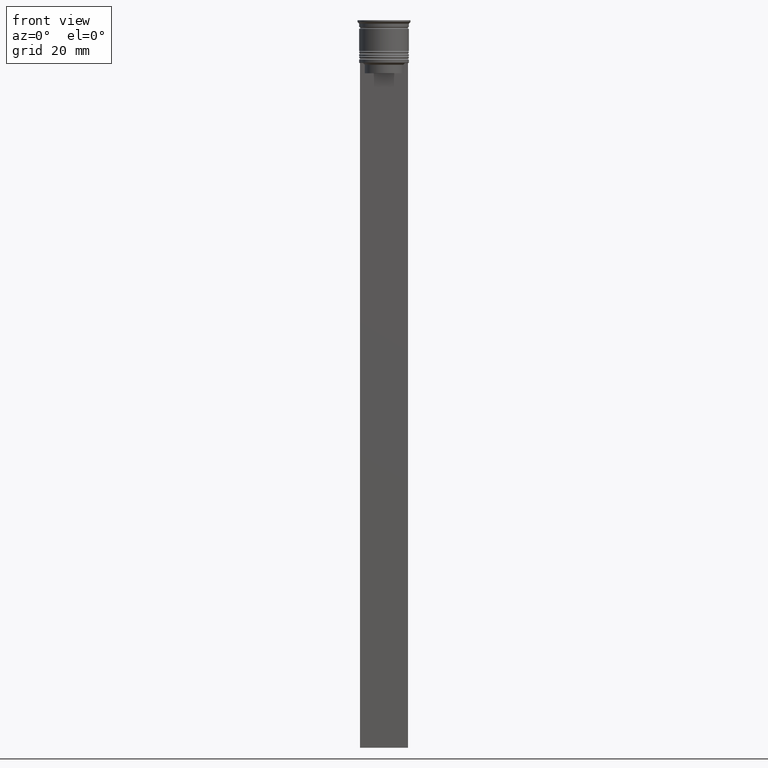
[diagram: clean part render]
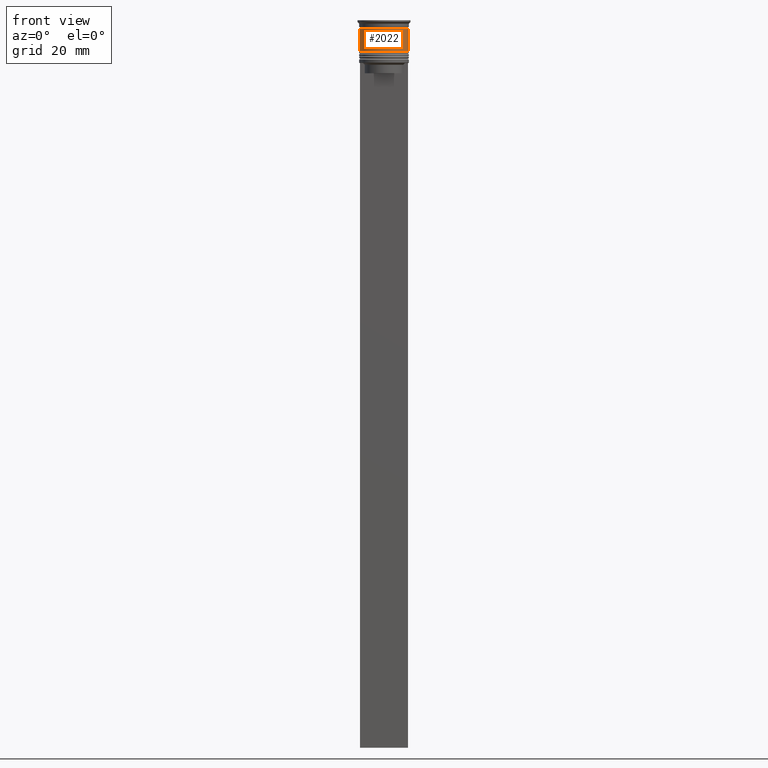
[diagram: same view with one face highlighted and labeled with its STEP entity id]
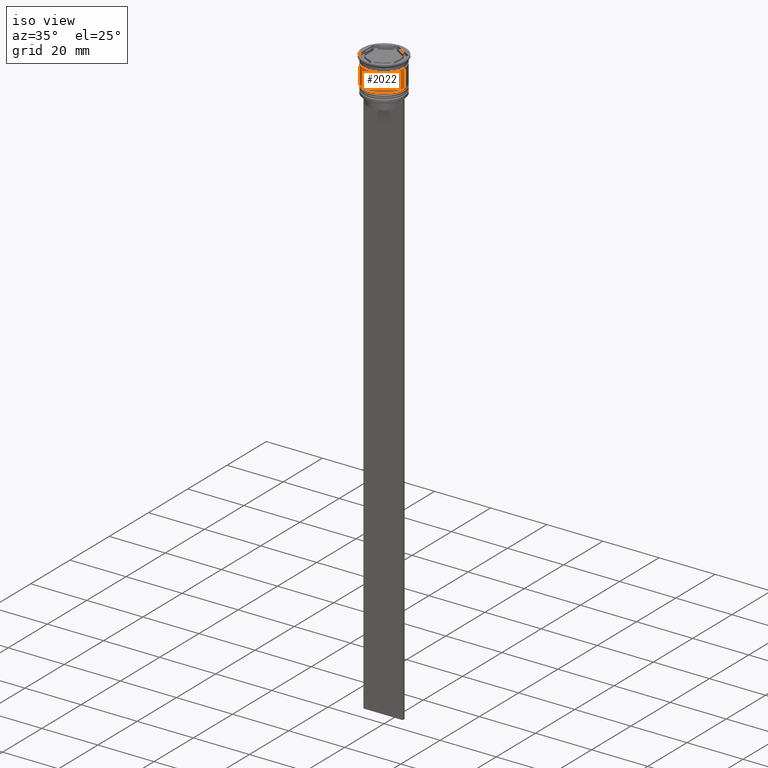
[diagram: same view with one face highlighted and labeled with its STEP entity id]
A machine part, front view. The second image highlights one B-rep face of the part: STEP entity #2022.
A second angle (iso view) of the same face is appended — the face is thin or edge-on in the first view.
In plain terms, the highlighted cylindrical surface (edge-blend (fillet) strip) has radius 7.25 mm, axis along (-0, -0, 1).
Its self-contained STEP definition (entity closure, byte-faithful):
#44 = VECTOR ( 'NONE', #480, 1000.000000000000000 ) ;
#51 = DIRECTION ( 'NONE',  ( -0.000000000000000000, -0.000000000000000000, 1.000000000000000000 ) ) ;
#89 = CARTESIAN_POINT ( 'NONE',  ( -7.250000000000000888, 8.878689293818312046E-16, -9.000000000000001776 ) ) ;
#130 = ORIENTED_EDGE ( 'NONE', *, *, #918, .F. ) ;
#224 = CARTESIAN_POINT ( 'NONE',  ( 0.000000000000000000, 0.000000000000000000, -9.000000000000001776 ) ) ;
#293 = FACE_OUTER_BOUND ( 'NONE', #1896, .T. ) ;
#361 = VERTEX_POINT ( 'NONE', #89 ) ;
#413 = ORIENTED_EDGE ( 'NONE', *, *, #1080, .F. ) ;
#453 = CARTESIAN_POINT ( 'NONE',  ( 0.000000000000000000, 0.000000000000000000, -2.500000000000000444 ) ) ;
#480 = DIRECTION ( 'NONE',  ( -0.000000000000000000, -0.000000000000000000, 1.000000000000000000 ) ) ;
#689 = LINE ( 'NONE', #1375, #44 ) ;
#805 = ORIENTED_EDGE ( 'NONE', *, *, #1208, .T. ) ;
#874 = VERTEX_POINT ( 'NONE', #1594 ) ;
#876 = VECTOR ( 'NONE', #1405, 1000.000000000000000 ) ;
#918 = EDGE_CURVE ( 'NONE', #361, #935, #1074, .T. ) ;
#935 = VERTEX_POINT ( 'NONE', #2319 ) ;
#943 = DIRECTION ( 'NONE',  ( 1.000000000000000000, 0.000000000000000000, 0.000000000000000000 ) ) ;
#988 = AXIS2_PLACEMENT_3D ( 'NONE', #453, #51, #1663 ) ;
#1046 = CARTESIAN_POINT ( 'NONE',  ( -7.249999999999999112, 8.878689293818310074E-16, 0.000000000000000000 ) ) ;
#1074 = LINE ( 'NONE', #1046, #876 ) ;
#1080 = EDGE_CURVE ( 'NONE', #935, #1518, #2200, .T. ) ;
#1109 = ORIENTED_EDGE ( 'NONE', *, *, #1811, .T. ) ;
#1131 = AXIS2_PLACEMENT_3D ( 'NONE', #224, #1879, #943 ) ;
#1199 = DIRECTION ( 'NONE',  ( 1.000000000000000000, 0.000000000000000000, 0.000000000000000000 ) ) ;
#1208 = EDGE_CURVE ( 'NONE', #874, #1518, #689, .T. ) ;
#1375 = CARTESIAN_POINT ( 'NONE',  ( 7.249999999999999112, 0.000000000000000000, 0.000000000000000000 ) ) ;
#1405 = DIRECTION ( 'NONE',  ( -0.000000000000000000, -0.000000000000000000, 1.000000000000000000 ) ) ;
#1518 = VERTEX_POINT ( 'NONE', #2202 ) ;
#1594 = CARTESIAN_POINT ( 'NONE',  ( 7.250000000000000888, 0.000000000000000000, -9.000000000000001776 ) ) ;
#1663 = DIRECTION ( 'NONE',  ( 1.000000000000000000, 0.000000000000000000, 0.000000000000000000 ) ) ;
#1734 = DIRECTION ( 'NONE',  ( -0.000000000000000000, -0.000000000000000000, 1.000000000000000000 ) ) ;
#1748 = CARTESIAN_POINT ( 'NONE',  ( 0.000000000000000000, 0.000000000000000000, 0.000000000000000000 ) ) ;
#1810 = AXIS2_PLACEMENT_3D ( 'NONE', #1748, #1734, #1199 ) ;
#1811 = EDGE_CURVE ( 'NONE', #361, #874, #1997, .T. ) ;
#1879 = DIRECTION ( 'NONE',  ( -0.000000000000000000, -0.000000000000000000, 1.000000000000000000 ) ) ;
#1896 = EDGE_LOOP ( 'NONE', ( #130, #1109, #805, #413 ) ) ;
#1997 = CIRCLE ( 'NONE', #1131, 7.250000000000000888 ) ;
#2022 = ADVANCED_FACE ( 'NONE', ( #293 ), #2261, .T. ) ;
#2200 = CIRCLE ( 'NONE', #988, 7.249999999999997335 ) ;
#2202 = CARTESIAN_POINT ( 'NONE',  ( 7.249999999999997335, 0.000000000000000000, -2.500000000000000444 ) ) ;
#2261 = CYLINDRICAL_SURFACE ( 'NONE', #1810, 7.249999999999999112 ) ;
#2319 = CARTESIAN_POINT ( 'NONE',  ( -7.249999999999997335, 8.878689293818308102E-16, -2.500000000000000444 ) ) ;